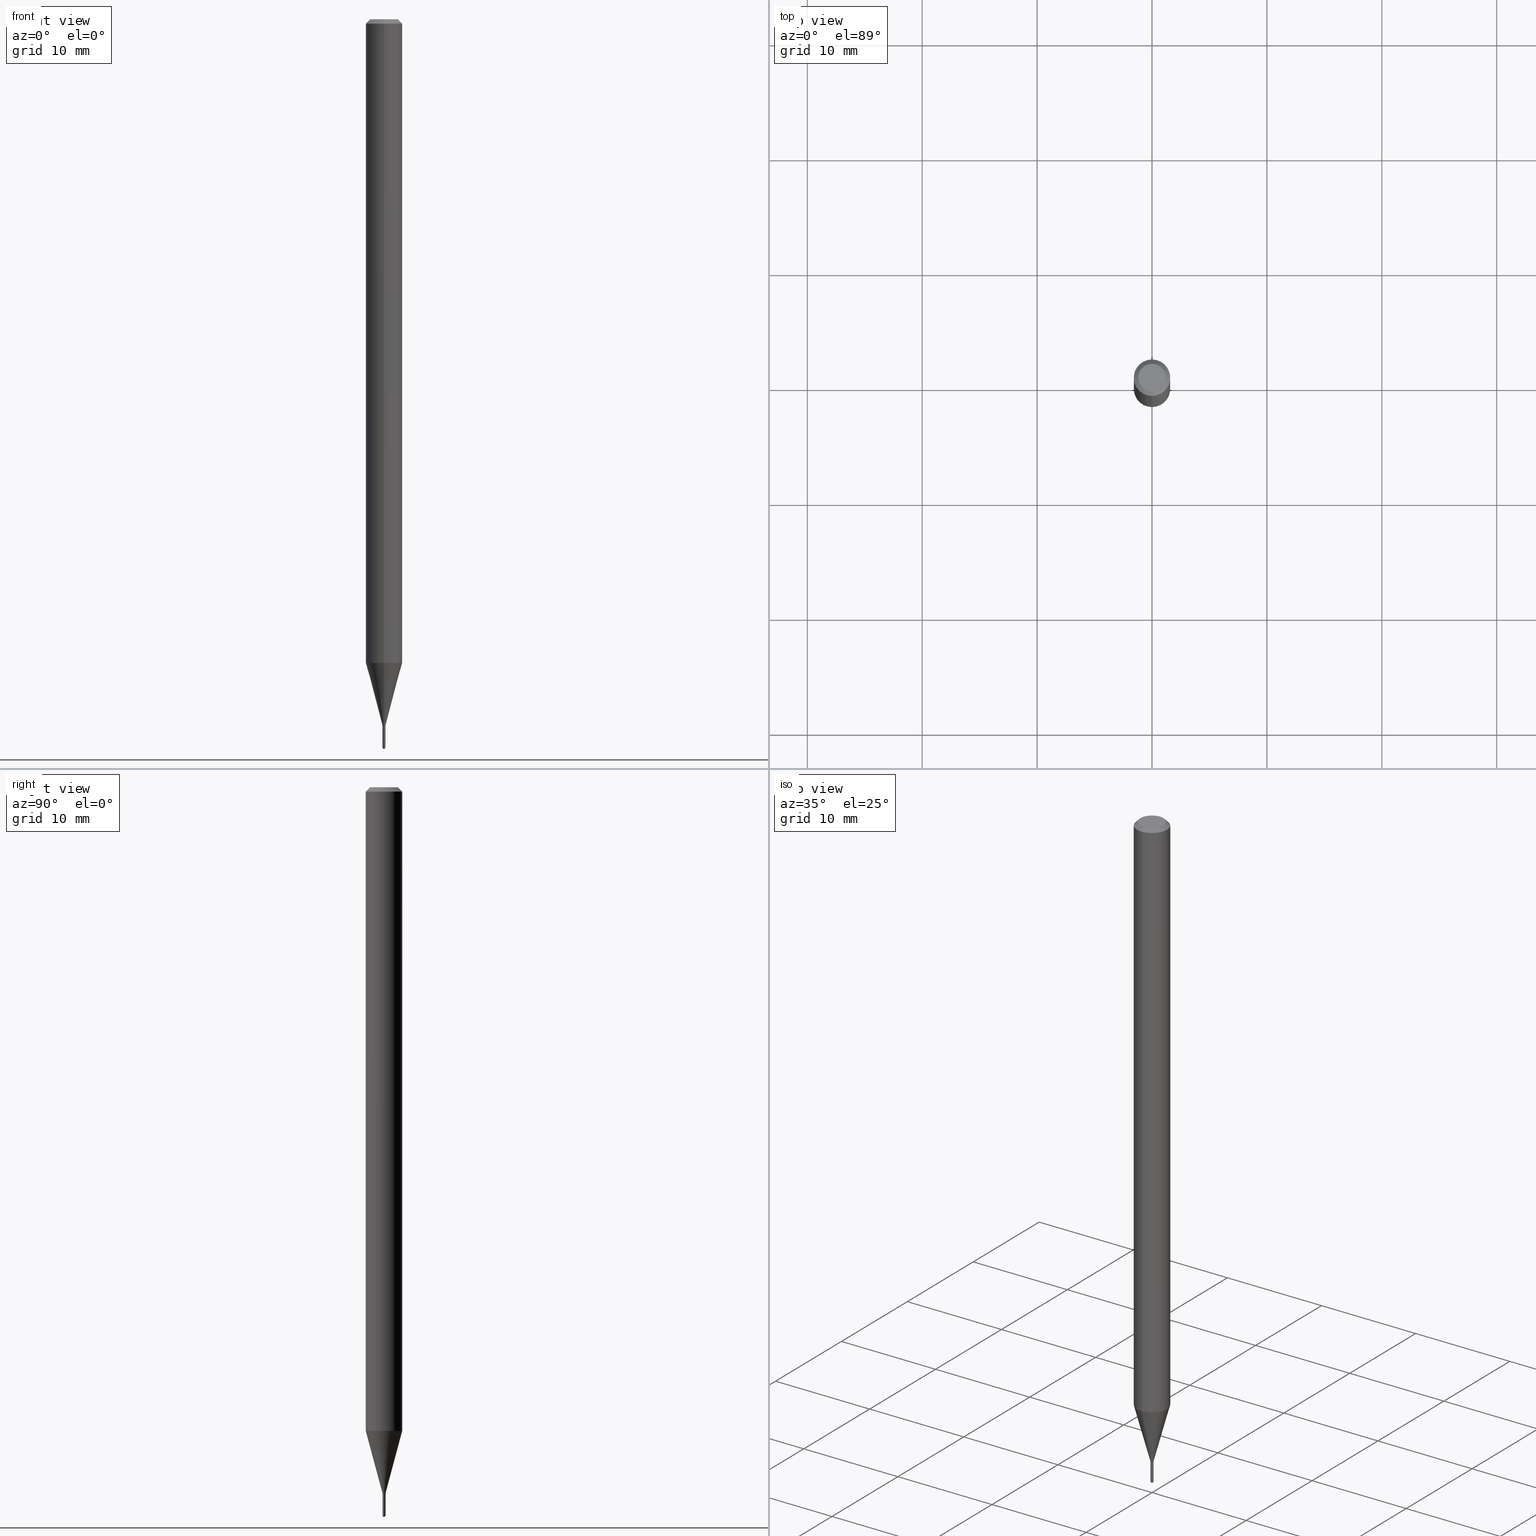
[diagram: canonical four-view strip — front | top / right | iso, engineering-drawing reading convention]
A machine part, canonical four-view strip (front | top / right | iso — engineering-drawing reading convention). The complete STEP part file that produces these views, byte-faithful:
ISO-10303-21;
HEADER;
FILE_DESCRIPTION (( 'STEP AP203' ),
    '1' );
FILE_NAME ('04482.STEP',
    '2024-03-08T19:59:01',
    ( '' ),
    ( '' ),
    'SwSTEP 2.0',
    'SolidWorks 2023',
    '' );
FILE_SCHEMA (( 'CONFIG_CONTROL_DESIGN' ));
ENDSEC;

DATA;
#1 = FACE_OUTER_BOUND ( 'NONE', #300, .T. ) ;
#2 = PERSON ( 'UNSPECIFIED', 'UNSPECIFIED', 'UNSPECIFIED', ('UNSPECIFIED'), ('UNSPECIFIED'), ('UNSPECIFIED') ) ;
#3 = CC_DESIGN_PERSON_AND_ORGANIZATION_ASSIGNMENT ( #375, #76, ( #162 ) ) ;
#4 = SHAPE_DEFINITION_REPRESENTATION ( #88, #43 ) ;
#5 = CARTESIAN_POINT ( 'NONE',  ( 4.440892098501163573E-16, 0.06249999999999229089, -2.205407078564797452 ) ) ;
#6 = CARTESIAN_POINT ( 'NONE',  ( -4.364351673553377310E-16, -0.06250000000000770217, -2.205407078564797008 ) ) ;
#7 = AXIS2_PLACEMENT_3D ( 'NONE', #96, #314, #473 ) ;
#8 = VECTOR ( 'NONE', #112, 39.37007874015748143 ) ;
#9 = CARTESIAN_POINT ( 'NONE',  ( -0.004999999999999997502, -8.544788253419027365E-15, -2.495000000000000551 ) ) ;
#10 = EDGE_CURVE ( 'NONE', #259, #94, #501, .T. ) ;
#11 = ORIENTED_EDGE ( 'NONE', *, *, #434, .F. ) ;
#12 = DIRECTION ( 'NONE',  ( -2.445468806185136597E-29, 3.491481338843145583E-15, 1.000000000000000000 ) ) ;
#13 = ORIENTED_EDGE ( 'NONE', *, *, #479, .T. ) ;
#14 = DIRECTION ( 'NONE',  ( -6.982962677686265133E-15, -1.000000000000000000, 0.000000000000000000 ) ) ;
#15 = DIRECTION ( 'NONE',  ( -6.982962677686265133E-15, -1.000000000000000000, 0.000000000000000000 ) ) ;
#16 = AXIS2_PLACEMENT_3D ( 'NONE', #131, #448, #57 ) ;
#17 = ORIENTED_EDGE ( 'NONE', *, *, #10, .T. ) ;
#18 = LINE ( 'NONE', #328, #117 ) ;
#19 = EDGE_CURVE ( 'NONE', #416, #63, #393, .T. ) ;
#20 = ORIENTED_EDGE ( 'NONE', *, *, #142, .T. ) ;
#21 = DIRECTION ( 'NONE',  ( -6.982962677686266711E-15, -1.000000000000000000, 0.000000000000000000 ) ) ;
#22 = DIRECTION ( 'NONE',  ( 1.000000000000000000, -6.982962677686336130E-15, 0.000000000000000000 ) ) ;
#23 = EDGE_LOOP ( 'NONE', ( #132, #171, #295, #293, #99 ) ) ;
#24 = DIRECTION ( 'NONE',  ( 1.839019923739647253E-15, 0.2588190451025315642, 0.9659258262890653146 ) ) ;
#25 = ORIENTED_EDGE ( 'NONE', *, *, #374, .T. ) ;
#26 = AXIS2_PLACEMENT_3D ( 'NONE', #290, #326, #210 ) ;
#27 = CYLINDRICAL_SURFACE ( 'NONE', #158, 0.005000000000000191791 ) ;
#28 = PERSON_AND_ORGANIZATION_ROLE ( 'design_supplier' ) ;
#29 = EDGE_CURVE ( 'NONE', #94, #146, #101, .T. ) ;
#30 = ORIENTED_EDGE ( 'NONE', *, *, #142, .F. ) ;
#31 = CARTESIAN_POINT ( 'NONE',  ( 5.919411717925942744E-29, -8.447412601250929931E-15, -2.419999999999999929 ) ) ;
#32 = DIRECTION ( 'NONE',  ( -2.446037899969398006E-29, 3.490666364153276782E-15, 1.000000000000000000 ) ) ;
#33 = ORIENTED_EDGE ( 'NONE', *, *, #479, .F. ) ;
#34 = PERSON_AND_ORGANIZATION_ROLE ( 'classification_officer' ) ;
#35 = DIRECTION ( 'NONE',  ( -2.445468806185136597E-29, 3.491481338843145583E-15, 1.000000000000000000 ) ) ;
#36 = VECTOR ( 'NONE', #64, 39.37007874015748143 ) ;
#37 = CONICAL_SURFACE ( 'NONE', #313, 0.005000000000000191791, 0.2617993877991571794 ) ;
#38 = EDGE_CURVE ( 'NONE', #70, #262, #471, .T. ) ;
#39 = APPROVAL_PERSON_ORGANIZATION ( #500, #78, #110 ) ;
#40 = APPROVAL_ROLE ( '' ) ;
#41 = ORIENTED_EDGE ( 'NONE', *, *, #342, .F. ) ;
#42 = FACE_OUTER_BOUND ( 'NONE', #439, .T. ) ;
#43 = ADVANCED_BREP_SHAPE_REPRESENTATION ( '04482', ( #344, #320, #89 ), #394 ) ;
#44 = CIRCLE ( 'NONE', #166, 0.06250000000000000000 ) ;
#45 = ADVANCED_FACE ( 'NONE', ( #297 ), #504, .T. ) ;
#46 = DIRECTION ( 'NONE',  ( -6.982962677686265922E-15, -1.000000000000000000, 3.490666364153276782E-15 ) ) ;
#47 = ADVANCED_FACE ( 'NONE', ( #507 ), #312, .T. ) ;
#48 = AXIS2_PLACEMENT_3D ( 'NONE', #104, #498, #301 ) ;
#49 = CC_DESIGN_SECURITY_CLASSIFICATION ( #203, ( #162 ) ) ;
#50 = ORIENTED_EDGE ( 'NONE', *, *, #10, .F. ) ;
#51 = DIRECTION ( 'NONE',  ( -6.982962677686266711E-15, -1.000000000000000000, 3.490666364153277177E-15 ) ) ;
#52 = ORIENTED_EDGE ( 'NONE', *, *, #29, .F. ) ;
#53 = LINE ( 'NONE', #266, #201 ) ;
#54 = DIRECTION ( 'NONE',  ( -2.446037899969398006E-29, 3.490666364153276782E-15, 1.000000000000000000 ) ) ;
#55 = ORIENTED_EDGE ( 'NONE', *, *, #374, .F. ) ;
#56 = CARTESIAN_POINT ( 'NONE',  ( 6.101444671431917961E-29, -8.711245940413649907E-15, -2.495000000000000551 ) ) ;
#57 = DIRECTION ( 'NONE',  ( 1.000000000000000000, -6.982962677686142071E-15, 0.000000000000000000 ) ) ;
#58 = CONICAL_SURFACE ( 'NONE', #418, 0.005000000000000191791, 0.2617993877991571794 ) ;
#59 = ORIENTED_EDGE ( 'NONE', *, *, #87, .F. ) ;
#60 = ADVANCED_FACE ( 'NONE', ( #118 ), #497, .T. ) ;
#61 = DIRECTION ( 'NONE',  ( -1.000000000000000000, 7.105427357601001070E-15, -4.926315508542082329E-29 ) ) ;
#62 = FACE_OUTER_BOUND ( 'NONE', #399, .T. ) ;
#63 = VERTEX_POINT ( 'NONE', #163 ) ;
#64 = DIRECTION ( 'NONE',  ( -4.937700262164674260E-15, -0.7071067811865632269, 0.7071067811865319186 ) ) ;
#65 = DATE_AND_TIME ( #197, #184 ) ;
#66 = VERTEX_POINT ( 'NONE', #5 ) ;
#67 = PLANE ( 'NONE',  #103 ) ;
#68 = ADVANCED_FACE ( 'NONE', ( #350 ), #85, .F. ) ;
#69 =( CONVERSION_BASED_UNIT ( 'INCH', #114 ) LENGTH_UNIT ( ) NAMED_UNIT ( #353 ) );
#70 = VERTEX_POINT ( 'NONE', #244 ) ;
#71 = DIRECTION ( 'NONE',  ( -2.446037899969397726E-29, 3.490666364153276782E-15, 1.000000000000000000 ) ) ;
#72 = CARTESIAN_POINT ( 'NONE',  ( 0.004999999999999997502, -8.615230203595463266E-15, -2.495000000000000551 ) ) ;
#73 = COORDINATED_UNIVERSAL_TIME_OFFSET ( 5, 0, .BEHIND. ) ;
#74 = ORIENTED_EDGE ( 'NONE', *, *, #278, .T. ) ;
#75 = LINE ( 'NONE', #464, #8 ) ;
#76 = PERSON_AND_ORGANIZATION_ROLE ( 'creator' ) ;
#77 = ORIENTED_EDGE ( 'NONE', *, *, #180, .F. ) ;
#78 = APPROVAL ( #462, 'UNSPECIFIED' ) ;
#79 = DIRECTION ( 'NONE',  ( 6.982962677686265922E-15, 1.000000000000000000, -3.483106191921935554E-15 ) ) ;
#80 = PERSON_AND_ORGANIZATION ( #2, #152 ) ;
#81 = ORIENTED_EDGE ( 'NONE', *, *, #226, .F. ) ;
#82 = CARTESIAN_POINT ( 'NONE',  ( 0.000000000000000000, 0.000000000000000000, 0.000000000000000000 ) ) ;
#83 = AXIS2_PLACEMENT_3D ( 'NONE', #424, #155, #311 ) ;
#84 = CARTESIAN_POINT ( 'NONE',  ( 3.669056849954113422E-31, -5.235999546229937606E-17, -0.01500000000000006710 ) ) ;
#85 = PLANE ( 'NONE',  #7 ) ;
#86 = DIRECTION ( 'NONE',  ( -2.446037899969397726E-29, 3.490666364153276782E-15, 1.000000000000000000 ) ) ;
#87 = EDGE_CURVE ( 'NONE', #457, #70, #356, .T. ) ;
#88 = PRODUCT_DEFINITION_SHAPE ( 'NONE', 'NONE',  #192 ) ;
#89 = AXIS2_PLACEMENT_3D ( 'NONE', #338, #232, #419 ) ;
#90 = ADVANCED_FACE ( 'NONE', ( #256 ), #27, .F. ) ;
#91 = ORIENTED_EDGE ( 'NONE', *, *, #19, .T. ) ;
#92 = CIRCLE ( 'NONE', #387, 0.005000000000000191791 ) ;
#93 = DIRECTION ( 'NONE',  ( -6.982962677686266711E-15, -1.000000000000000000, 3.490666364153276782E-15 ) ) ;
#94 = VERTEX_POINT ( 'NONE', #209 ) ;
#95 = LINE ( 'NONE', #337, #36 ) ;
#96 = CARTESIAN_POINT ( 'NONE',  ( 5.919411717925943865E-29, -8.447412601250931509E-15, -2.420000000000000373 ) ) ;
#97 = CARTESIAN_POINT ( 'NONE',  ( 3.316907271900976096E-16, 0.04749999999999999362, -1.985761249723631179E-16 ) ) ;
#98 = EDGE_CURVE ( 'NONE', #287, #66, #149, .T. ) ;
#99 = ORIENTED_EDGE ( 'NONE', *, *, #475, .F. ) ;
#100 = PLANE ( 'NONE',  #492 ) ;
#101 = CIRCLE ( 'NONE', #120, 0.005000000000000191791 ) ;
#102 = SPHERICAL_SURFACE ( 'NONE', #26, 0.005000000000000040870 ) ;
#103 = AXIS2_PLACEMENT_3D ( 'NONE', #273, #113, #351 ) ;
#104 = CARTESIAN_POINT ( 'NONE',  ( 5.394509299030280483E-29, -7.698340308411679369E-15, -2.205407078564797008 ) ) ;
#105 = APPROVAL_PERSON_ORGANIZATION ( #193, #502, #274 ) ;
#106 = FACE_OUTER_BOUND ( 'NONE', #181, .T. ) ;
#107 =( LENGTH_UNIT ( ) NAMED_UNIT ( * ) SI_UNIT ( $, .METRE. ) );
#108 = EDGE_LOOP ( 'NONE', ( #33, #176 ) ) ;
#109 = DIRECTION ( 'NONE',  ( 1.000000000000000000, -6.982962677686142071E-15, 0.000000000000000000 ) ) ;
#110 = APPROVAL_ROLE ( '' ) ;
#111 = EDGE_LOOP ( 'NONE', ( #50, #329, #20, #52 ) ) ;
#112 = DIRECTION ( 'NONE',  ( -2.446037899969397726E-29, 3.490666364153276782E-15, 1.000000000000000000 ) ) ;
#113 = DIRECTION ( 'NONE',  ( 2.438088387897960049E-29, -3.491481338843145188E-15, -1.000000000000000000 ) ) ;
#114 = LENGTH_MEASURE_WITH_UNIT ( LENGTH_MEASURE( 0.02539999999999999897 ), #107 );
#115 = ORIENTED_EDGE ( 'NONE', *, *, #19, .F. ) ;
#116 = CYLINDRICAL_SURFACE ( 'NONE', #505, 0.06250000000000000000 ) ;
#117 = VECTOR ( 'NONE', #490, 39.37007874015748143 ) ;
#118 = FACE_OUTER_BOUND ( 'NONE', #381, .T. ) ;
#119 = ORIENTED_EDGE ( 'NONE', *, *, #366, .T. ) ;
#120 = AXIS2_PLACEMENT_3D ( 'NONE', #459, #376, #272 ) ;
#121 = CIRCLE ( 'NONE', #398, 0.004999999999999997502 ) ;
#122 = CARTESIAN_POINT ( 'NONE',  ( 3.669056849954113422E-31, -5.235999546229937606E-17, -0.01500000000000006710 ) ) ;
#123 = EDGE_CURVE ( 'NONE', #178, #247, #444, .T. ) ;
#124 = CYLINDRICAL_SURFACE ( 'NONE', #182, 0.06250000000000000000 ) ;
#125 = APPLICATION_CONTEXT ( 'configuration controlled 3d designs of mechanical parts and assemblies' ) ;
#126 = ADVANCED_FACE ( 'NONE', ( #294 ), #186, .T. ) ;
#127 = CARTESIAN_POINT ( 'NONE',  ( 5.919411717925943865E-29, -8.447412601250931509E-15, -2.420000000000000373 ) ) ;
#128 = VERTEX_POINT ( 'NONE', #214 ) ;
#129 = AXIS2_PLACEMENT_3D ( 'NONE', #370, #373, #147 ) ;
#130 = UNCERTAINTY_MEASURE_WITH_UNIT (LENGTH_MEASURE( 1.000000000000000082E-05 ), #69, 'distance_accuracy_value', 'NONE');
#131 = CARTESIAN_POINT ( 'NONE',  ( 6.101444671431917961E-29, -8.711245940413649907E-15, -2.495000000000000551 ) ) ;
#132 = ORIENTED_EDGE ( 'NONE', *, *, #207, .F. ) ;
#133 = CARTESIAN_POINT ( 'NONE',  ( -4.287811248607203282E-16, -0.06250000000000005551, -0.01499999999999984852 ) ) ;
#134 = EDGE_CURVE ( 'NONE', #136, #66, #53, .T. ) ;
#135 = CARTESIAN_POINT ( 'NONE',  ( 6.101017088287326305E-29, -8.711858263813222510E-15, -2.495000000000000107 ) ) ;
#136 = VERTEX_POINT ( 'NONE', #496 ) ;
#137 = CARTESIAN_POINT ( 'NONE',  ( 3.840629472727447874E-16, 0.04749999999999999362, -2.313455976474456035E-16 ) ) ;
#138 = ORIENTED_EDGE ( 'NONE', *, *, #238, .T. ) ;
#139 = FACE_OUTER_BOUND ( 'NONE', #348, .T. ) ;
#140 = AXIS2_PLACEMENT_3D ( 'NONE', #218, #61, #330 ) ;
#141 = CIRCLE ( 'NONE', #476, 0.004499999999999994456 ) ;
#142 = EDGE_CURVE ( 'NONE', #170, #146, #95, .T. ) ;
#143 = ORIENTED_EDGE ( 'NONE', *, *, #335, .T. ) ;
#144 = DIRECTION ( 'NONE',  ( 2.446037899969397446E-29, -3.490666364153276782E-15, -1.000000000000000000 ) ) ;
#145 = APPLICATION_PROTOCOL_DEFINITION ( 'international standard', 'config_control_design', 1994, #310 ) ;
#146 = VERTEX_POINT ( 'NONE', #254 ) ;
#147 = DIRECTION ( 'NONE',  ( -6.982962677686265922E-15, -1.000000000000000000, 4.370956789862821150E-15 ) ) ;
#148 = CARTESIAN_POINT ( 'NONE',  ( 3.197442310926365819E-17, 0.004499999999991547220, -2.420000000000000373 ) ) ;
#149 = CIRCLE ( 'NONE', #129, 0.06250000000000000000 ) ;
#150 = ORIENTED_EDGE ( 'NONE', *, *, #303, .T. ) ;
#151 = FACE_OUTER_BOUND ( 'NONE', #291, .T. ) ;
#152 = ORGANIZATION ( 'UNSPECIFIED', 'UNSPECIFIED', '' ) ;
#153 = ADVANCED_FACE ( 'NONE', ( #452 ), #100, .F. ) ;
#154 = CALENDAR_DATE ( 2024, 8, 3 ) ;
#155 = DIRECTION ( 'NONE',  ( -2.445468806185136597E-29, 3.491481338843145583E-15, 1.000000000000000000 ) ) ;
#156 = CARTESIAN_POINT ( 'NONE',  ( -4.364351673553912750E-16, -0.06250000000000005551, -0.01499999999999984852 ) ) ;
#157 = COORDINATED_UNIVERSAL_TIME_OFFSET ( 5, 0, .BEHIND. ) ;
#158 = AXIS2_PLACEMENT_3D ( 'NONE', #324, #221, #409 ) ;
#159 = ADVANCED_FACE ( 'NONE', ( #362 ), #174, .T. ) ;
#160 = DIRECTION ( 'NONE',  ( -2.446037899969398006E-29, 3.490666364153276782E-15, 1.000000000000000000 ) ) ;
#161 = AXIS2_PLACEMENT_3D ( 'NONE', #31, #508, #228 ) ;
#162 = PRODUCT_DEFINITION_FORMATION_WITH_SPECIFIED_SOURCE ( 'ANY', '', #164, .NOT_KNOWN. ) ;
#163 = CARTESIAN_POINT ( 'NONE',  ( -0.004999999999999997502, -8.544788253419027365E-15, -2.419999999999999929 ) ) ;
#164 = PRODUCT ( '04482', '04482', '', ( #219 ) ) ;
#165 = ADVANCED_FACE ( 'NONE', ( #139 ), #58, .T. ) ;
#166 = AXIS2_PLACEMENT_3D ( 'NONE', #122, #242, #392 ) ;
#167 = CIRCLE ( 'NONE', #386, 0.005000000000000191791 ) ;
#168 = LOCAL_TIME ( 14, 59, 1.000000000000000000, #412 ) ;
#169 = CARTESIAN_POINT ( 'NONE',  ( 0.004999999999999997502, -8.484299653388844977E-15, -2.419999999999999929 ) ) ;
#170 = VERTEX_POINT ( 'NONE', #405 ) ;
#171 = ORIENTED_EDGE ( 'NONE', *, *, #434, .T. ) ;
#172 = EDGE_CURVE ( 'NONE', #319, #400, #248, .T. ) ;
#173 = CARTESIAN_POINT ( 'NONE',  ( 6.101017088287326305E-29, -8.711858263813222510E-15, -2.495000000000000107 ) ) ;
#174 = CONICAL_SURFACE ( 'NONE', #283, 0.004499999999999994456, 0.7853981633974739252 ) ;
#175 = DIRECTION ( 'NONE',  ( -1.807323732225376682E-15, -0.2588190451025248473, 0.9659258262890670910 ) ) ;
#176 = ORIENTED_EDGE ( 'NONE', *, *, #391, .F. ) ;
#177 = DIRECTION ( 'NONE',  ( 6.982962677686265922E-15, 1.000000000000000000, -3.490666364153276782E-15 ) ) ;
#178 = VERTEX_POINT ( 'NONE', #137 ) ;
#179 = FACE_OUTER_BOUND ( 'NONE', #275, .T. ) ;
#180 = EDGE_CURVE ( 'NONE', #227, #318, #483, .T. ) ;
#181 = EDGE_LOOP ( 'NONE', ( #91, #229 ) ) ;
#182 = AXIS2_PLACEMENT_3D ( 'NONE', #435, #395, #46 ) ;
#183 = CALENDAR_DATE ( 2024, 8, 3 ) ;
#184 = LOCAL_TIME ( 14, 59, 1.000000000000000000, #509 ) ;
#185 = DIRECTION ( 'NONE',  ( 6.982962677686265922E-15, 1.000000000000000000, -3.483106191921935554E-15 ) ) ;
#186 = SPHERICAL_SURFACE ( 'NONE', #427, 0.005000000000000040870 ) ;
#187 = ORIENTED_EDGE ( 'NONE', *, *, #278, .F. ) ;
#188 = DIRECTION ( 'NONE',  ( -2.446037899969398006E-29, 3.490666364153276782E-15, 1.000000000000000000 ) ) ;
#189 = DATE_AND_TIME ( #154, #168 ) ;
#190 = DIRECTION ( 'NONE',  ( -2.445468806185136597E-29, 3.491481338843145583E-15, 1.000000000000000000 ) ) ;
#191 = DIRECTION ( 'NONE',  ( -6.982962677686265922E-15, -1.000000000000000000, 3.483106191921935554E-15 ) ) ;
#192 = PRODUCT_DEFINITION ( 'UNKNOWN', '', #162, #333 ) ;
#193 = PERSON_AND_ORGANIZATION ( #2, #152 ) ;
#194 = CLOSED_SHELL ( 'NONE', ( #60, #126, #215, #469, #45 ) ) ;
#195 = EDGE_LOOP ( 'NONE', ( #13, #17, #198, #30 ) ) ;
#196 = AXIS2_PLACEMENT_3D ( 'NONE', #382, #417, #281 ) ;
#197 = CALENDAR_DATE ( 2024, 8, 3 ) ;
#198 = ORIENTED_EDGE ( 'NONE', *, *, #270, .F. ) ;
#199 = ADVANCED_FACE ( 'NONE', ( #179 ), #37, .T. ) ;
#200 = AXIS2_PLACEMENT_3D ( 'NONE', #84, #32, #191 ) ;
#201 = VECTOR ( 'NONE', #24, 39.37007874015748854 ) ;
#202 = CONICAL_SURFACE ( 'NONE', #280, 0.06250000000000000000, 0.7853981633974483900 ) ;
#203 = SECURITY_CLASSIFICATION ( '', '', #299 ) ;
#204 = DIRECTION ( 'NONE',  ( -6.982962677686265133E-15, -1.000000000000000000, 0.000000000000000000 ) ) ;
#205 = ORIENTED_EDGE ( 'NONE', *, *, #309, .T. ) ;
#206 = CARTESIAN_POINT ( 'NONE',  ( -3.491481338837347677E-17, -0.005000000000008639894, -2.419999999999999929 ) ) ;
#207 = EDGE_CURVE ( 'NONE', #400, #63, #18, .T. ) ;
#208 = ORIENTED_EDGE ( 'NONE', *, *, #461, .T. ) ;
#209 = CARTESIAN_POINT ( 'NONE',  ( 3.552713678806544417E-17, 0.004999999999991730677, -2.419500000000000206 ) ) ;
#210 = DIRECTION ( 'NONE',  ( 6.982962677686265922E-15, 1.000000000000000000, 0.000000000000000000 ) ) ;
#211 = EDGE_LOOP ( 'NONE', ( #59, #277, #426, #436 ) ) ;
#212 = CARTESIAN_POINT ( 'NONE',  ( 5.919411717925943865E-29, -8.447412601250931509E-15, -2.420000000000000373 ) ) ;
#213 = ORIENTED_EDGE ( 'NONE', *, *, #309, .F. ) ;
#214 = CARTESIAN_POINT ( 'NONE',  ( -3.491481338837347677E-17, -0.005000000000008639894, -2.419999999999999929 ) ) ;
#215 = ADVANCED_FACE ( 'NONE', ( #106 ), #67, .F. ) ;
#216 = CARTESIAN_POINT ( 'NONE',  ( 1.603107442505267031E-45, -2.287745920759006935E-31, -6.553894535016498344E-17 ) ) ;
#217 = ORIENTED_EDGE ( 'NONE', *, *, #335, .F. ) ;
#218 = CARTESIAN_POINT ( 'NONE',  ( 6.101017088287326305E-29, -8.711858263813222510E-15, -2.495000000000000107 ) ) ;
#219 = MECHANICAL_CONTEXT ( 'NONE', #125, 'mechanical' ) ;
#220 = ORIENTED_EDGE ( 'NONE', *, *, #411, .T. ) ;
#221 = DIRECTION ( 'NONE',  ( -2.446037899969398006E-29, 3.490666364153276782E-15, 1.000000000000000000 ) ) ;
#222 = CIRCLE ( 'NONE', #512, 0.005000000000000040870 ) ;
#223 = APPLICATION_PROTOCOL_DEFINITION ( 'international standard', 'config_control_design', 1994, #125 ) ;
#224 = ORIENTED_EDGE ( 'NONE', *, *, #172, .T. ) ;
#225 = APPROVAL_DATE_TIME ( #458, #78 ) ;
#226 = EDGE_CURVE ( 'NONE', #247, #318, #378, .T. ) ;
#227 = VERTEX_POINT ( 'NONE', #346 ) ;
#228 = DIRECTION ( 'NONE',  ( -6.982962677686266711E-15, -1.000000000000000000, 0.000000000000000000 ) ) ;
#229 = ORIENTED_EDGE ( 'NONE', *, *, #475, .T. ) ;
#230 = LINE ( 'NONE', #385, #296 ) ;
#231 = LINE ( 'NONE', #390, #408 ) ;
#232 = DIRECTION ( 'NONE',  ( 0.000000000000000000, 0.000000000000000000, 1.000000000000000000 ) ) ;
#233 = CONICAL_SURFACE ( 'NONE', #284, 0.004499999999999994456, 0.7853981633974739252 ) ;
#234 = EDGE_LOOP ( 'NONE', ( #77, #41, #482, #359 ) ) ;
#235 = FACE_OUTER_BOUND ( 'NONE', #111, .T. ) ;
#236 = CC_DESIGN_APPROVAL ( #502, ( #162 ) ) ;
#237 = CARTESIAN_POINT ( 'NONE',  ( 5.919411717925942744E-29, -8.447412601250929931E-15, -2.419999999999999929 ) ) ;
#238 = EDGE_CURVE ( 'NONE', #66, #247, #465, .T. ) ;
#239 = DATE_AND_TIME ( #241, #451 ) ;
#240 = CARTESIAN_POINT ( 'NONE',  ( 3.375077994866460049E-17, 0.004499999999991547220, -2.420000000000000373 ) ) ;
#241 = CALENDAR_DATE ( 2024, 8, 3 ) ;
#242 = DIRECTION ( 'NONE',  ( -2.446037899969398006E-29, 3.490666364153276782E-15, 1.000000000000000000 ) ) ;
#243 = CIRCLE ( 'NONE', #161, 0.005000000000000191791 ) ;
#244 = CARTESIAN_POINT ( 'NONE',  ( -3.552713678794411983E-17, -0.005000000000008730967, -2.495000000000000551 ) ) ;
#245 = ADVANCED_FACE ( 'NONE', ( #42 ), #202, .T. ) ;
#246 = DIRECTION ( 'NONE',  ( -2.446037899969397726E-29, 3.490666364153276782E-15, 1.000000000000000000 ) ) ;
#247 = VERTEX_POINT ( 'NONE', #430 ) ;
#248 = CIRCLE ( 'NONE', #433, 0.004999999999999997502 ) ;
#249 = AXIS2_PLACEMENT_3D ( 'NONE', #216, #322, #93 ) ;
#250 = APPROVAL_PERSON_ORGANIZATION ( #454, #315, #40 ) ;
#251 = EDGE_CURVE ( 'NONE', #262, #416, #231, .T. ) ;
#252 = CARTESIAN_POINT ( 'NONE',  ( -3.491481338843267215E-17, -0.005000000000000191791, 1.745333182076705444E-17 ) ) ;
#253 = ORIENTED_EDGE ( 'NONE', *, *, #251, .F. ) ;
#254 = CARTESIAN_POINT ( 'NONE',  ( -3.491481338837360003E-17, -0.005000000000008653772, -2.419500000000000206 ) ) ;
#255 = ORIENTED_EDGE ( 'NONE', *, *, #366, .F. ) ;
#256 = FACE_OUTER_BOUND ( 'NONE', #404, .T. ) ;
#257 = DIRECTION ( 'NONE',  ( 1.000000000000000000, -6.982962677686265922E-15, 4.883557194083112340E-29 ) ) ;
#258 = EDGE_CURVE ( 'NONE', #136, #128, #92, .T. ) ;
#259 = VERTEX_POINT ( 'NONE', #240 ) ;
#260 = DIRECTION ( 'NONE',  ( -2.446037899969398006E-29, 3.490666364153276782E-15, 1.000000000000000000 ) ) ;
#261 = CIRCLE ( 'NONE', #306, 0.004499999999999994456 ) ;
#262 = VERTEX_POINT ( 'NONE', #72 ) ;
#263 = CARTESIAN_POINT ( 'NONE',  ( 5.919411717925942744E-29, -8.447412601250929931E-15, -2.419999999999999929 ) ) ;
#264 = PERSON_AND_ORGANIZATION ( #2, #152 ) ;
#265 = ORIENTED_EDGE ( 'NONE', *, *, #172, .F. ) ;
#266 = CARTESIAN_POINT ( 'NONE',  ( 3.552713678806556127E-17, 0.004999999999991744555, -2.419999999999999929 ) ) ;
#267 =( NAMED_UNIT ( * ) SI_UNIT ( $, .STERADIAN. ) SOLID_ANGLE_UNIT ( ) );
#268 = ORIENTED_EDGE ( 'NONE', *, *, #29, .T. ) ;
#269 = VECTOR ( 'NONE', #441, 39.37007874015748143 ) ;
#270 = EDGE_CURVE ( 'NONE', #146, #94, #167, .T. ) ;
#271 = CIRCLE ( 'NONE', #48, 0.06250000000000000000 ) ;
#272 = DIRECTION ( 'NONE',  ( -6.982962677686266711E-15, -1.000000000000000000, 0.000000000000000000 ) ) ;
#273 = CARTESIAN_POINT ( 'NONE',  ( 3.491481338849049319E-17, 0.004999999999991548531, -2.419999999999999929 ) ) ;
#274 = APPROVAL_ROLE ( '' ) ;
#275 = EDGE_LOOP ( 'NONE', ( #205, #489, #361, #255 ) ) ;
#276 = PERSON_AND_ORGANIZATION ( #2, #152 ) ;
#277 = ORIENTED_EDGE ( 'NONE', *, *, #510, .T. ) ;
#278 = EDGE_CURVE ( 'NONE', #318, #247, #44, .T. ) ;
#279 = CARTESIAN_POINT ( 'NONE',  ( 3.669056849954113422E-31, -5.235999546229937606E-17, -0.01500000000000006710 ) ) ;
#280 = AXIS2_PLACEMENT_3D ( 'NONE', #279, #349, #79 ) ;
#281 = DIRECTION ( 'NONE',  ( -6.982962677686266711E-15, -1.000000000000000000, 3.490666364153276782E-15 ) ) ;
#282 = ADVANCED_FACE ( 'NONE', ( #1 ), #124, .T. ) ;
#283 = AXIS2_PLACEMENT_3D ( 'NONE', #401, #260, #14 ) ;
#284 = AXIS2_PLACEMENT_3D ( 'NONE', #127, #491, #15 ) ;
#285 = EDGE_LOOP ( 'NONE', ( #407, #413, #11, #265 ) ) ;
#286 = CC_DESIGN_PERSON_AND_ORGANIZATION_ASSIGNMENT ( #264, #347, ( #164 ) ) ;
#287 = VERTEX_POINT ( 'NONE', #6 ) ;
#288 = AXIS2_PLACEMENT_3D ( 'NONE', #336, #35, #308 ) ;
#289 = VECTOR ( 'NONE', #246, 39.37007874015748143 ) ;
#290 = CARTESIAN_POINT ( 'NONE',  ( 6.101017088287326305E-29, -8.711858263813222510E-15, -2.495000000000000107 ) ) ;
#291 = EDGE_LOOP ( 'NONE', ( #449, #138, #187, #372 ) ) ;
#292 = DIRECTION ( 'NONE',  ( -4.851104656540964275E-15, -0.7071067811865500152, -0.7071067811865450192 ) ) ;
#293 = ORIENTED_EDGE ( 'NONE', *, *, #251, .T. ) ;
#294 = FACE_OUTER_BOUND ( 'NONE', #285, .T. ) ;
#295 = ORIENTED_EDGE ( 'NONE', *, *, #38, .T. ) ;
#296 = VECTOR ( 'NONE', #71, 39.37007874015748143 ) ;
#297 = FACE_OUTER_BOUND ( 'NONE', #23, .T. ) ;
#298 = DIRECTION ( 'NONE',  ( 6.982962677686265922E-15, 1.000000000000000000, 0.000000000000000000 ) ) ;
#299 = SECURITY_CLASSIFICATION_LEVEL ( 'unclassified' ) ;
#300 = EDGE_LOOP ( 'NONE', ( #420, #150, #466, #81 ) ) ;
#301 = DIRECTION ( 'NONE',  ( -6.982962677686265922E-15, -1.000000000000000000, 4.370956789862821150E-15 ) ) ;
#302 = DIRECTION ( 'NONE',  ( -2.445468806185136877E-29, 3.491481338843145188E-15, 1.000000000000000000 ) ) ;
#303 = EDGE_CURVE ( 'NONE', #66, #287, #271, .T. ) ;
#304 = DIRECTION ( 'NONE',  ( 5.024295867788190974E-15, 0.7071067811865681119, 0.7071067811865270336 ) ) ;
#305 = AXIS2_PLACEMENT_3D ( 'NONE', #345, #190, #384 ) ;
#306 = AXIS2_PLACEMENT_3D ( 'NONE', #212, #363, #484 ) ;
#307 = DATE_TIME_ROLE ( 'creation_date' ) ;
#308 = DIRECTION ( 'NONE',  ( 1.000000000000000000, -6.982962677686266711E-15, 4.876176775795936914E-29 ) ) ;
#309 = EDGE_CURVE ( 'NONE', #128, #136, #243, .T. ) ;
#310 = APPLICATION_CONTEXT ( 'configuration controlled 3d designs of mechanical parts and assemblies' ) ;
#311 = DIRECTION ( 'NONE',  ( 1.000000000000000000, -6.982962677686266711E-15, 4.876176775795936914E-29 ) ) ;
#312 = CONICAL_SURFACE ( 'NONE', #365, 0.06250000000000000000, 0.7853981633974483900 ) ;
#313 = AXIS2_PLACEMENT_3D ( 'NONE', #263, #447, #414 ) ;
#314 = DIRECTION ( 'NONE',  ( -2.446037899969397446E-29, 3.490666364153276782E-15, 1.000000000000000000 ) ) ;
#315 = APPROVAL ( #506, 'UNSPECIFIED' ) ;
#316 = ADVANCED_FACE ( 'NONE', ( #151 ), #116, .T. ) ;
#317 = CARTESIAN_POINT ( 'NONE',  ( 0.000000000000000000, 0.000000000000000000, 0.000000000000000000 ) ) ;
#318 = VERTEX_POINT ( 'NONE', #156 ) ;
#319 = VERTEX_POINT ( 'NONE', #467 ) ;
#320 = MANIFOLD_SOLID_BREP ( 'Body-Move/Copy2[2]', #331 ) ;
#321 = DIRECTION ( 'NONE',  ( -2.445468806185136597E-29, 3.491481338843145583E-15, 1.000000000000000000 ) ) ;
#322 = DIRECTION ( 'NONE',  ( -2.446037899969398006E-29, 3.490666364153276782E-15, 1.000000000000000000 ) ) ;
#323 = ORIENTED_EDGE ( 'NONE', *, *, #342, .T. ) ;
#324 = CARTESIAN_POINT ( 'NONE',  ( 0.000000000000000000, 0.000000000000000000, 0.000000000000000000 ) ) ;
#325 = CC_DESIGN_DATE_AND_TIME_ASSIGNMENT ( #189, #307, ( #192 ) ) ;
#326 = DIRECTION ( 'NONE',  ( -1.000000000000000000, 6.982962677686265922E-15, -4.883557194083113462E-29 ) ) ;
#327 = ORIENTED_EDGE ( 'NONE', *, *, #258, .F. ) ;
#328 = CARTESIAN_POINT ( 'NONE',  ( -0.004999999999999997502, 3.552713678800499154E-17, -2.459467545127451822E-31 ) ) ;
#329 = ORIENTED_EDGE ( 'NONE', *, *, #391, .T. ) ;
#330 = DIRECTION ( 'NONE',  ( -7.105427357600999492E-15, -1.000000000000000000, 0.000000000000000000 ) ) ;
#331 = CLOSED_SHELL ( 'NONE', ( #90, #159, #245, #316, #199, #165, #282, #47, #153, #68, #355, #431 ) ) ;
#332 = VECTOR ( 'NONE', #86, 39.37007874015748143 ) ;
#333 = DESIGN_CONTEXT ( 'detailed design', #310, 'design' ) ;
#334 = DATE_AND_TIME ( #183, #440 ) ;
#335 = EDGE_CURVE ( 'NONE', #136, #94, #75, .T. ) ;
#336 = CARTESIAN_POINT ( 'NONE',  ( 0.000000000000000000, 0.000000000000000000, 0.000000000000000000 ) ) ;
#337 = CARTESIAN_POINT ( 'NONE',  ( -3.142333204952895970E-17, -0.004500000000008441692, -2.420000000000000373 ) ) ;
#338 = CARTESIAN_POINT ( 'NONE',  ( 0.000000000000000000, 0.000000000000000000, 0.000000000000000000 ) ) ;
#339 = ORIENTED_EDGE ( 'NONE', *, *, #258, .T. ) ;
#340 = CARTESIAN_POINT ( 'NONE',  ( 5.918188698975959535E-29, -8.445667268068853053E-15, -2.419500000000000206 ) ) ;
#341 = CARTESIAN_POINT ( 'NONE',  ( 6.101444671431917961E-29, -8.711245940413649907E-15, -2.495000000000000551 ) ) ;
#342 = EDGE_CURVE ( 'NONE', #178, #227, #450, .T. ) ;
#343 = DATE_TIME_ROLE ( 'classification_date' ) ;
#344 = MANIFOLD_SOLID_BREP ( 'Body-Move/Copy2[1]', #194 ) ;
#345 = CARTESIAN_POINT ( 'NONE',  ( 5.918034510968030250E-29, -8.449384840000413328E-15, -2.419999999999999929 ) ) ;
#346 = CARTESIAN_POINT ( 'NONE',  ( -3.773273898774340269E-16, -0.04749999999999999362, 1.002677069471156366E-16 ) ) ;
#347 = PERSON_AND_ORGANIZATION_ROLE ( 'design_owner' ) ;
#348 = EDGE_LOOP ( 'NONE', ( #478, #339, #119, #410 ) ) ;
#349 = DIRECTION ( 'NONE',  ( 2.446037899969398006E-29, -3.490666364153276782E-15, -1.000000000000000000 ) ) ;
#350 = FACE_OUTER_BOUND ( 'NONE', #108, .T. ) ;
#351 = DIRECTION ( 'NONE',  ( -1.000000000000000000, 6.982962677686265922E-15, -4.876176775795935793E-29 ) ) ;
#352 = EDGE_CURVE ( 'NONE', #287, #318, #230, .T. ) ;
#353 = DIMENSIONAL_EXPONENTS ( 1.000000000000000000, 0.000000000000000000, 0.000000000000000000, 0.000000000000000000, 0.000000000000000000, 0.000000000000000000, 0.000000000000000000 ) ;
#354 = DIRECTION ( 'NONE',  ( -6.982962677686266711E-15, -1.000000000000000000, 0.000000000000000000 ) ) ;
#355 = ADVANCED_FACE ( 'NONE', ( #235 ), #233, .T. ) ;
#356 = CIRCLE ( 'NONE', #140, 0.005000000000000040870 ) ;
#357 = VECTOR ( 'NONE', #175, 39.37007874015748143 ) ;
#358 = LINE ( 'NONE', #252, #289 ) ;
#359 = ORIENTED_EDGE ( 'NONE', *, *, #226, .T. ) ;
#360 = CARTESIAN_POINT ( 'NONE',  ( 5.918034510968030250E-29, -8.449384840000413328E-15, -2.419999999999999929 ) ) ;
#361 = ORIENTED_EDGE ( 'NONE', *, *, #98, .F. ) ;
#362 = FACE_OUTER_BOUND ( 'NONE', #195, .T. ) ;
#363 = DIRECTION ( 'NONE',  ( -2.446037899969398006E-29, 3.490666364153276782E-15, 1.000000000000000000 ) ) ;
#364 = ORIENTED_EDGE ( 'NONE', *, *, #180, .T. ) ;
#365 = AXIS2_PLACEMENT_3D ( 'NONE', #455, #463, #185 ) ;
#366 = EDGE_CURVE ( 'NONE', #128, #287, #437, .T. ) ;
#367 = CARTESIAN_POINT ( 'NONE',  ( 5.919411717925942744E-29, -8.447412601250929931E-15, -2.419999999999999929 ) ) ;
#368 = DIRECTION ( 'NONE',  ( 6.982962677686265133E-15, 1.000000000000000000, 0.000000000000000000 ) ) ;
#369 = EDGE_LOOP ( 'NONE', ( #323, #208 ) ) ;
#370 = CARTESIAN_POINT ( 'NONE',  ( 5.394509299030280483E-29, -7.698340308411679369E-15, -2.205407078564797008 ) ) ;
#371 = FACE_OUTER_BOUND ( 'NONE', #211, .T. ) ;
#372 = ORIENTED_EDGE ( 'NONE', *, *, #352, .F. ) ;
#373 = DIRECTION ( 'NONE',  ( -2.446037899969398006E-29, 3.490666364153276782E-15, 1.000000000000000000 ) ) ;
#374 = EDGE_CURVE ( 'NONE', #128, #146, #358, .T. ) ;
#375 = PERSON_AND_ORGANIZATION ( #2, #152 ) ;
#376 = DIRECTION ( 'NONE',  ( -2.446037899969398006E-29, 3.490666364153276782E-15, 1.000000000000000000 ) ) ;
#377 = AXIS2_PLACEMENT_3D ( 'NONE', #341, #380, #389 ) ;
#378 = CIRCLE ( 'NONE', #200, 0.06250000000000000000 ) ;
#379 = CALENDAR_DATE ( 2024, 8, 3 ) ;
#380 = DIRECTION ( 'NONE',  ( -2.445468806185136597E-29, 3.491481338843145583E-15, 1.000000000000000000 ) ) ;
#381 = EDGE_LOOP ( 'NONE', ( #224, #485, #115, #253, #220 ) ) ;
#382 = CARTESIAN_POINT ( 'NONE',  ( 1.603107442505267031E-45, -2.287745920759006935E-31, -6.553894535016498344E-17 ) ) ;
#383 = PERSON_AND_ORGANIZATION ( #2, #152 ) ;
#384 = DIRECTION ( 'NONE',  ( 1.000000000000000000, -6.982962677686336130E-15, 0.000000000000000000 ) ) ;
#385 = CARTESIAN_POINT ( 'NONE',  ( -4.364351673553916201E-16, -0.06250000000000000000, 2.181666477595797989E-16 ) ) ;
#386 = AXIS2_PLACEMENT_3D ( 'NONE', #340, #160, #354 ) ;
#387 = AXIS2_PLACEMENT_3D ( 'NONE', #237, #511, #470 ) ;
#388 = APPROVAL_STATUS ( 'not_yet_approved' ) ;
#389 = DIRECTION ( 'NONE',  ( 1.000000000000000000, -6.982962677686142071E-15, 0.000000000000000000 ) ) ;
#390 = CARTESIAN_POINT ( 'NONE',  ( 0.004999999999999997502, -3.491481338843131630E-17, 2.438088387897967108E-31 ) ) ;
#391 = EDGE_CURVE ( 'NONE', #259, #170, #141, .T. ) ;
#392 = DIRECTION ( 'NONE',  ( -6.982962677686265922E-15, -1.000000000000000000, 3.483106191921935554E-15 ) ) ;
#393 = CIRCLE ( 'NONE', #305, 0.004999999999999997502 ) ;
#394 =( GEOMETRIC_REPRESENTATION_CONTEXT ( 3 ) GLOBAL_UNCERTAINTY_ASSIGNED_CONTEXT ( ( #130 ) ) GLOBAL_UNIT_ASSIGNED_CONTEXT ( ( #69, #415, #267 ) ) REPRESENTATION_CONTEXT ( 'NONE', 'WORKASPACE' ) );
#395 = DIRECTION ( 'NONE',  ( -2.446037899969398006E-29, 3.490666364153276782E-15, 1.000000000000000000 ) ) ;
#396 = CC_DESIGN_DATE_AND_TIME_ASSIGNMENT ( #334, #343, ( #203 ) ) ;
#397 = DIRECTION ( 'NONE',  ( -2.446037899969398006E-29, 3.490666364153276782E-15, 1.000000000000000000 ) ) ;
#398 = AXIS2_PLACEMENT_3D ( 'NONE', #488, #445, #406 ) ;
#399 = EDGE_LOOP ( 'NONE', ( #217, #213, #25, #493 ) ) ;
#400 = VERTEX_POINT ( 'NONE', #9 ) ;
#401 = CARTESIAN_POINT ( 'NONE',  ( 5.919411717925943865E-29, -8.447412601250931509E-15, -2.420000000000000373 ) ) ;
#402 = CYLINDRICAL_SURFACE ( 'NONE', #428, 0.005000000000000191791 ) ;
#403 = CC_DESIGN_PERSON_AND_ORGANIZATION_ASSIGNMENT ( #276, #28, ( #162 ) ) ;
#404 = EDGE_LOOP ( 'NONE', ( #327, #143, #268, #55 ) ) ;
#405 = CARTESIAN_POINT ( 'NONE',  ( -3.142333204952895970E-17, -0.004500000000008441692, -2.420000000000000373 ) ) ;
#406 = DIRECTION ( 'NONE',  ( 1.000000000000000000, -6.982962677686142071E-15, 0.000000000000000000 ) ) ;
#407 = ORIENTED_EDGE ( 'NONE', *, *, #510, .F. ) ;
#408 = VECTOR ( 'NONE', #302, 39.37007874015748143 ) ;
#409 = DIRECTION ( 'NONE',  ( -6.982962677686266711E-15, -1.000000000000000000, 3.490666364153277177E-15 ) ) ;
#410 = ORIENTED_EDGE ( 'NONE', *, *, #303, .F. ) ;
#411 = EDGE_CURVE ( 'NONE', #262, #319, #460, .T. ) ;
#412 = COORDINATED_UNIVERSAL_TIME_OFFSET ( 5, 0, .BEHIND. ) ;
#413 = ORIENTED_EDGE ( 'NONE', *, *, #87, .T. ) ;
#414 = DIRECTION ( 'NONE',  ( -6.982962677686266711E-15, -1.000000000000000000, 0.000000000000000000 ) ) ;
#415 =( NAMED_UNIT ( * ) PLANE_ANGLE_UNIT ( ) SI_UNIT ( $, .RADIAN. ) );
#416 = VERTEX_POINT ( 'NONE', #169 ) ;
#417 = DIRECTION ( 'NONE',  ( -2.446037899969398006E-29, 3.490666364153276782E-15, 1.000000000000000000 ) ) ;
#418 = AXIS2_PLACEMENT_3D ( 'NONE', #367, #456, #21 ) ;
#419 = DIRECTION ( 'NONE',  ( 1.000000000000000000, 0.000000000000000000, 0.000000000000000000 ) ) ;
#420 = ORIENTED_EDGE ( 'NONE', *, *, #238, .F. ) ;
#421 = DIRECTION ( 'NONE',  ( -6.982962677686265922E-15, -1.000000000000000000, 3.490666364153276782E-15 ) ) ;
#422 = APPROVAL_DATE_TIME ( #65, #502 ) ;
#423 = PRODUCT_RELATED_PRODUCT_CATEGORY ( 'detail', '', ( #164 ) ) ;
#424 = CARTESIAN_POINT ( 'NONE',  ( 0.000000000000000000, 0.000000000000000000, 0.000000000000000000 ) ) ;
#425 = COORDINATED_UNIVERSAL_TIME_OFFSET ( 5, 0, .BEHIND. ) ;
#426 = ORIENTED_EDGE ( 'NONE', *, *, #411, .F. ) ;
#427 = AXIS2_PLACEMENT_3D ( 'NONE', #173, #486, #298 ) ;
#428 = AXIS2_PLACEMENT_3D ( 'NONE', #317, #54, #51 ) ;
#429 = CC_DESIGN_APPROVAL ( #78, ( #192 ) ) ;
#430 = CARTESIAN_POINT ( 'NONE',  ( 4.440892098501169490E-16, 0.06249999999999995837, -0.01500000000000028394 ) ) ;
#431 = ADVANCED_FACE ( 'NONE', ( #62 ), #402, .F. ) ;
#432 = APPROVAL_DATE_TIME ( #239, #315 ) ;
#433 = AXIS2_PLACEMENT_3D ( 'NONE', #56, #321, #109 ) ;
#434 = EDGE_CURVE ( 'NONE', #400, #70, #121, .T. ) ;
#435 = CARTESIAN_POINT ( 'NONE',  ( 0.000000000000000000, 0.000000000000000000, 0.000000000000000000 ) ) ;
#436 = ORIENTED_EDGE ( 'NONE', *, *, #38, .F. ) ;
#437 = LINE ( 'NONE', #206, #357 ) ;
#438 = CIRCLE ( 'NONE', #481, 0.004999999999999997502 ) ;
#439 = EDGE_LOOP ( 'NONE', ( #443, #364, #74, #446 ) ) ;
#440 = LOCAL_TIME ( 14, 59, 1.000000000000000000, #425 ) ;
#441 = DIRECTION ( 'NONE',  ( 4.937700262164548042E-15, 0.7071067811865451302, -0.7071067811865499042 ) ) ;
#442 = CC_DESIGN_PERSON_AND_ORGANIZATION_ASSIGNMENT ( #80, #503, ( #192 ) ) ;
#443 = ORIENTED_EDGE ( 'NONE', *, *, #461, .F. ) ;
#444 = LINE ( 'NONE', #499, #269 ) ;
#445 = DIRECTION ( 'NONE',  ( -2.445468806185136597E-29, 3.491481338843145583E-15, 1.000000000000000000 ) ) ;
#446 = ORIENTED_EDGE ( 'NONE', *, *, #123, .F. ) ;
#447 = DIRECTION ( 'NONE',  ( -2.446037899969398006E-29, 3.490666364153276782E-15, 1.000000000000000000 ) ) ;
#448 = DIRECTION ( 'NONE',  ( -2.445468806185136597E-29, 3.491481338843145583E-15, 1.000000000000000000 ) ) ;
#449 = ORIENTED_EDGE ( 'NONE', *, *, #98, .T. ) ;
#450 = CIRCLE ( 'NONE', #196, 0.04749999999999999362 ) ;
#451 = LOCAL_TIME ( 14, 59, 1.000000000000000000, #157 ) ;
#452 = FACE_OUTER_BOUND ( 'NONE', #369, .T. ) ;
#453 = LOCAL_TIME ( 14, 59, 1.000000000000000000, #73 ) ;
#454 = PERSON_AND_ORGANIZATION ( #2, #152 ) ;
#455 = CARTESIAN_POINT ( 'NONE',  ( 3.669056849954113422E-31, -5.235999546229937606E-17, -0.01500000000000006710 ) ) ;
#456 = DIRECTION ( 'NONE',  ( -2.446037899969398006E-29, 3.490666364153276782E-15, 1.000000000000000000 ) ) ;
#457 = VERTEX_POINT ( 'NONE', #477 ) ;
#458 = DATE_AND_TIME ( #379, #453 ) ;
#459 = CARTESIAN_POINT ( 'NONE',  ( 5.918188698975959535E-29, -8.445667268068853053E-15, -2.419500000000000206 ) ) ;
#460 = CIRCLE ( 'NONE', #16, 0.004999999999999997502 ) ;
#461 = EDGE_CURVE ( 'NONE', #227, #178, #472, .T. ) ;
#462 = APPROVAL_STATUS ( 'not_yet_approved' ) ;
#463 = DIRECTION ( 'NONE',  ( 2.446037899969398006E-29, -3.490666364153276782E-15, -1.000000000000000000 ) ) ;
#464 = CARTESIAN_POINT ( 'NONE',  ( 3.552713678800636589E-17, 0.005000000000000191791, -1.745333182076705444E-17 ) ) ;
#465 = LINE ( 'NONE', #468, #332 ) ;
#466 = ORIENTED_EDGE ( 'NONE', *, *, #352, .T. ) ;
#467 = CARTESIAN_POINT ( 'NONE',  ( 3.491481338849247767E-17, 0.004999999999991307405, -2.495000000000000551 ) ) ;
#468 = CARTESIAN_POINT ( 'NONE',  ( 4.440892098500625669E-16, 0.06250000000000000000, -2.181666477595797989E-16 ) ) ;
#469 = ADVANCED_FACE ( 'NONE', ( #371 ), #102, .T. ) ;
#470 = DIRECTION ( 'NONE',  ( -6.982962677686266711E-15, -1.000000000000000000, 0.000000000000000000 ) ) ;
#471 = CIRCLE ( 'NONE', #377, 0.004999999999999997502 ) ;
#472 = CIRCLE ( 'NONE', #249, 0.04749999999999999362 ) ;
#473 = DIRECTION ( 'NONE',  ( -6.982962677686265922E-15, -1.000000000000000000, 3.490666364153276782E-15 ) ) ;
#474 = VECTOR ( 'NONE', #304, 39.37007874015748143 ) ;
#475 = EDGE_CURVE ( 'NONE', #63, #416, #438, .T. ) ;
#476 = AXIS2_PLACEMENT_3D ( 'NONE', #480, #397, #204 ) ;
#477 = CARTESIAN_POINT ( 'NONE',  ( 6.113458223890547345E-29, -8.729009508807650455E-15, -2.500000000000000000 ) ) ;
#478 = ORIENTED_EDGE ( 'NONE', *, *, #134, .F. ) ;
#479 = EDGE_CURVE ( 'NONE', #170, #259, #261, .T. ) ;
#480 = CARTESIAN_POINT ( 'NONE',  ( 5.919411717925943865E-29, -8.447412601250931509E-15, -2.420000000000000373 ) ) ;
#481 = AXIS2_PLACEMENT_3D ( 'NONE', #360, #12, #22 ) ;
#482 = ORIENTED_EDGE ( 'NONE', *, *, #123, .T. ) ;
#483 = LINE ( 'NONE', #133, #494 ) ;
#484 = DIRECTION ( 'NONE',  ( -6.982962677686265133E-15, -1.000000000000000000, 0.000000000000000000 ) ) ;
#485 = ORIENTED_EDGE ( 'NONE', *, *, #207, .T. ) ;
#486 = DIRECTION ( 'NONE',  ( -1.000000000000000000, 6.982962677686265922E-15, -4.883557194083113462E-29 ) ) ;
#487 = CC_DESIGN_PERSON_AND_ORGANIZATION_ASSIGNMENT ( #383, #34, ( #203 ) ) ;
#488 = CARTESIAN_POINT ( 'NONE',  ( 6.101444671431917961E-29, -8.711245940413649907E-15, -2.495000000000000551 ) ) ;
#489 = ORIENTED_EDGE ( 'NONE', *, *, #134, .T. ) ;
#490 = DIRECTION ( 'NONE',  ( -2.445468806185136877E-29, 3.491481338843145188E-15, 1.000000000000000000 ) ) ;
#491 = DIRECTION ( 'NONE',  ( -2.446037899969398006E-29, 3.490666364153276782E-15, 1.000000000000000000 ) ) ;
#492 = AXIS2_PLACEMENT_3D ( 'NONE', #97, #144, #177 ) ;
#493 = ORIENTED_EDGE ( 'NONE', *, *, #270, .T. ) ;
#494 = VECTOR ( 'NONE', #292, 39.37007874015748143 ) ;
#495 = CC_DESIGN_APPROVAL ( #315, ( #203 ) ) ;
#496 = CARTESIAN_POINT ( 'NONE',  ( 2.398081733190911688E-16, 0.004999999999991744555, -2.419999999999999929 ) ) ;
#497 = CYLINDRICAL_SURFACE ( 'NONE', #83, 0.004999999999999997502 ) ;
#498 = DIRECTION ( 'NONE',  ( -2.446037899969398006E-29, 3.490666364153276782E-15, 1.000000000000000000 ) ) ;
#499 = CARTESIAN_POINT ( 'NONE',  ( 4.364351673553919652E-16, 0.06249999999999995143, -0.01500000000000028394 ) ) ;
#500 = PERSON_AND_ORGANIZATION ( #2, #152 ) ;
#501 = LINE ( 'NONE', #148, #474 ) ;
#502 = APPROVAL ( #388, 'UNSPECIFIED' ) ;
#503 = PERSON_AND_ORGANIZATION_ROLE ( 'creator' ) ;
#504 = CYLINDRICAL_SURFACE ( 'NONE', #288, 0.004999999999999997502 ) ;
#505 = AXIS2_PLACEMENT_3D ( 'NONE', #82, #188, #421 ) ;
#506 = APPROVAL_STATUS ( 'not_yet_approved' ) ;
#507 = FACE_OUTER_BOUND ( 'NONE', #234, .T. ) ;
#508 = DIRECTION ( 'NONE',  ( -2.446037899969398006E-29, 3.490666364153276782E-15, 1.000000000000000000 ) ) ;
#509 = COORDINATED_UNIVERSAL_TIME_OFFSET ( 5, 0, .BEHIND. ) ;
#510 = EDGE_CURVE ( 'NONE', #457, #319, #222, .T. ) ;
#511 = DIRECTION ( 'NONE',  ( -2.446037899969398006E-29, 3.490666364153276782E-15, 1.000000000000000000 ) ) ;
#512 = AXIS2_PLACEMENT_3D ( 'NONE', #135, #257, #368 ) ;
ENDSEC;
END-ISO-10303-21;
